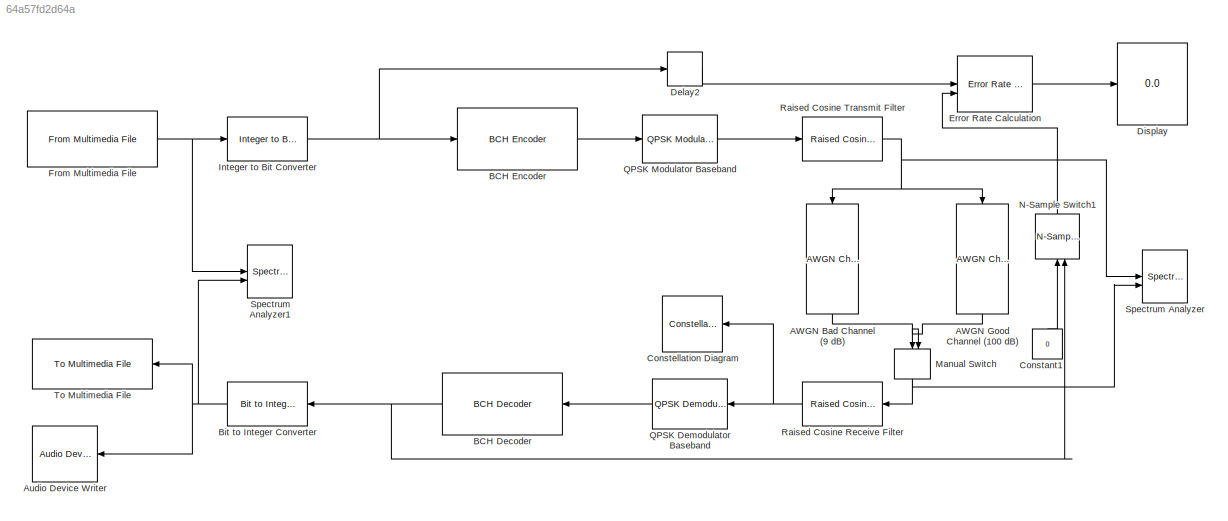
MODEL slx_64a57fd2d64a
KIND model
CONFIG AbsTol = auto
CONFIG EnableMultiTasking = off
CONFIG FixedStep = auto
CONFIG MaxStep = auto
CONFIG MinStep = auto
CONFIG RelTol = 1e-3
CONFIG SampleTimeConstraint = Unconstrained
CONFIG SolverName = VariableStepAuto
CONFIG StartTime = 0.0
CONFIG StopTime = 60
BLOCK [Reference] AWGN Bad Channel (9 dB)  REF=commchan3/AWGN
Channel
  NameLocation = left
  SourceBlock = commchan3/AWGN\nChannel
  SourceType = AWGN Channel
BLOCK [Reference] AWGN Good Channel (100 dB)  REF=commchan3/AWGN
Channel
  NameLocation = left
  SourceBlock = commchan3/AWGN\nChannel
  SourceType = AWGN Channel
BLOCK [Reference] Audio Device Writer  REF=dspsnks4/Audio Device
Writer
  LibrarySourceBlock = audiosinks/Audio Device\nWriter
  NameLocation = top
  SourceBlock = dspsnks4/Audio Device\nWriter
  SourceType = Audio Device Writer
BLOCK [Reference] BCH Decoder  REF=commblkcod2/BCH Decoder
  SourceBlock = commblkcod2/BCH Decoder
  SourceType = BCH Decoder
BLOCK [Reference] BCH Encoder  REF=commblkcod2/BCH Encoder
  SourceBlock = commblkcod2/BCH Encoder
  SourceType = BCH Encoder
BLOCK [Reference] Bit to Integer Converter  REF=simulink/Logic and Bit
Operations/Bit to Integer
Converter
  SourceBlock = simulink/Logic and Bit\nOperations/Bit to Integer\nConverter
  SourceType = Bit to Integer Converter
BLOCK [Constant] Constant1
  NameLocation = left
  OutDataTypeStr = uint8
  Value = 0
BLOCK [ConstellationDiagram] Constellation Diagram
  GraphicalSettings = {"GraphicalSettings":{"Style":{}}}
  ScopeFrameLocation = window
  Visible = on
  WasSavedAsWebScope = on
  WindowPosition = [220.000000,300.000000,600.000000,600.000000,]
BLOCK [Delay] Delay2
  InputPortMap = u0
BLOCK [Display] Display
  Decimation = 1
BLOCK [Reference] Error Rate Calculation  REF=commsink2/Error Rate
Calculation
  LibrarySourceBlock = commhdlsink/Error Rate\nCalculation
  SourceBlock = commsink2/Error Rate\nCalculation
  SourceType = Error Rate Calculation
BLOCK [Reference] From Multimedia File  REF=dspvision/From Multimedia File
  LibrarySourceBlock = audiosources/From Multimedia File
  SourceBlock = dspvision/From Multimedia File
  SourceType = From Multimedia File
BLOCK [Reference] Integer to Bit Converter  REF=simulink/Logic and Bit
Operations/Integer to Bit
Converter
  SourceBlock = simulink/Logic and Bit\nOperations/Integer to Bit\nConverter
  SourceType = Integer to Bit Converter
BLOCK [ManualSwitch] Manual Switch
  NameLocation = left
BLOCK [Reference] N-Sample Switch1  REF=dspswit3/N-Sample
Switch
  NameLocation = left
  SourceBlock = dspswit3/N-Sample\nSwitch
  SourceType = N-Sample Switch
BLOCK [Reference] QPSK Demodulator Baseband  REF=commdigbbndpm3/QPSK
Demodulator
Baseband
  LibrarySourceBlock = commhdldigbbndpm/QPSK\nDemodulator\nBaseband
  SourceBlock = commdigbbndpm3/QPSK\nDemodulator\nBaseband
  SourceType = QPSK Demodulator Baseband
BLOCK [Reference] QPSK Modulator Baseband  REF=commdigbbndpm3/QPSK
Modulator
Baseband
  LibrarySourceBlock = commhdldigbbndpm/QPSK\nModulator\nBaseband
  SourceBlock = commdigbbndpm3/QPSK\nModulator\nBaseband
  SourceType = QPSK Modulator Baseband
BLOCK [Reference] Raised Cosine Receive Filter  REF=commfilt2/Raised Cosine
Receive Filter
  LibrarySourceBlock = commhdlfilt/Raised Cosine\nReceive Filter
  SourceBlock = commfilt2/Raised Cosine\nReceive Filter
  SourceType = Raised Cosine Receive Filter
  UserDataPersistent = on
BLOCK [Reference] Raised Cosine Transmit Filter  REF=commfilt2/Raised Cosine
Transmit Filter
  LibrarySourceBlock = commhdlfilt/Raised Cosine\nTransmit Filter
  SourceBlock = commfilt2/Raised Cosine\nTransmit Filter
  SourceType = Raised Cosine Transmit Filter
  UserDataPersistent = on
BLOCK [SpectrumAnalyzer] Spectrum Analyzer
  DefaultConfigurationName = spbscopes.SpectrumAnalyzerBlockCfg
  FrequencyInputRBWFromPort = 0
  FrequencyInputRBWPort = 0
  FrequencySpan = Span and center frequency
  FrequencyVectorFromPort = 0
  FrequencyVectorPort = 0
  GraphicalSettings = {"GraphicalSettings":{"Style":{"BackgroundColor":[0.1568627450980392,0.1568627450980392,0.1568627450980392],"AxesColor":[0,0,0],"LabelsColor":[0.6862745098039216,0.6862745098039216,0.6862745098039216],"PreserveColors":false,"Visible":[true,true],"LineStyle":["-","-"],"LineColor":[[1,1,0.06666666666666667],[0.07450980392156863,0.6235294117647059,1]],"LineWidth":[1.5,1.5],"Marker":["none","none"],"F...<+879ch>
  IsFrequencyInputMode = 0
  NumInputPorts = 2
  ScopeFrameLocation = window
  ScopeSpecificationString = spbscopes.SpectrumAnalyzerBlockCfg('CurrentConfiguration', extmgr.ConfigurationSet(extmgr.Configuration('Core','General UI',true),extmgr.Configuration('Core','Source UI',true),extmgr.Configuration('Sources','WiredSimulink',true),extmgr.Configuration('Visuals','Spectrum',true,'AxesProperties',struct('Color',{[0 0 0],[0 0 0]},'XColor',{[0.686274509803922 0.686274509803922 0.686274509803922],[0.68627...<+1392ch>
  ShowLegend = on
  Span = 12000
  StartFrequency = -420000
  StopFrequency = 420000
  Visible = on
  WasSavedAsWebScope = on
  WindowPosition = [1.000000,49.000000,1664.000000,1039.000000,]
  YLimits = [-46.26455933,3.40486354]
BLOCK [SpectrumAnalyzer] Spectrum Analyzer1
  DefaultConfigurationName = spbscopes.SpectrumAnalyzerBlockCfg
  FrequencyInputRBWFromPort = 0
  FrequencyInputRBWPort = 0
  FrequencyVectorFromPort = 0
  FrequencyVectorPort = 0
  GraphicalSettings = {"GraphicalSettings":{"Style":{"BackgroundColor":[0.1568627450980392,0.1568627450980392,0.1568627450980392],"AxesColor":[0,0,0],"LabelsColor":[0.6862745098039216,0.6862745098039216,0.6862745098039216],"PreserveColors":false,"Visible":[true,true],"LineStyle":["-","-"],"LineColor":[[1,1,0.06666666666666667],[0.07450980392156863,0.6235294117647059,1]],"LineWidth":[1.5,1.5],"Marker":["none","none"],"F...<+880ch>
  IsFrequencyInputMode = 0
  NumInputPorts = 2
  ScopeFrameLocation = window
  ScopeSpecificationString = spbscopes.SpectrumAnalyzerBlockCfg('CurrentConfiguration', extmgr.ConfigurationSet(extmgr.Configuration('Core','General UI',true),extmgr.Configuration('Core','Source UI',true),extmgr.Configuration('Sources','WiredSimulink',true),extmgr.Configuration('Visuals','Spectrum',true,'AxesProperties',struct('Color',{[0 0 0],[0 0 0]},'XColor',{[0.686274509803922 0.686274509803922 0.686274509803922],[0.68627...<+1392ch>
  ShowLegend = on
  Span = 840000
  StartFrequency = -420000
  StopFrequency = 420000
  Visible = on
  WasSavedAsWebScope = on
  WindowPosition = [834.000000,50.000000,829.000000,1030.000000,]
  YLimits = [26.7993,88.4038]
BLOCK [Reference] To Multimedia File  REF=dspvision/To Multimedia File
  Commented = on
  LibrarySourceBlock = audiosinks/To Multimedia File
  SourceBlock = dspvision/To Multimedia File
  SourceType = To Multimedia File
LINE AWGN Bad Channel (9 dB):1 -> Manual Switch:1
LINE AWGN Good Channel (100 dB):1 -> Manual Switch:2
NET BCH Decoder:1 -> Bit to Integer Converter:1, N-Sample Switch1:2
LINE BCH Encoder:1 -> QPSK Modulator Baseband:1
NET Bit to Integer Converter:1 -> Audio Device Writer:1, Spectrum Analyzer1:2, To Multimedia File:1
LINE Constant1:1 -> N-Sample Switch1:1
LINE Delay2:1 -> Error Rate Calculation:1
LINE Error Rate Calculation:1 -> Display:1
NET From Multimedia File:1 -> Integer to Bit Converter:1, Spectrum Analyzer1:1
NET Integer to Bit Converter:1 -> BCH Encoder:1, Delay2:1
NET Manual Switch:1 -> Raised Cosine Receive Filter:1, Spectrum Analyzer:2
LINE N-Sample Switch1:1 -> Error Rate Calculation:2
LINE QPSK Demodulator Baseband:1 -> BCH Decoder:1
LINE QPSK Modulator Baseband:1 -> Raised Cosine Transmit Filter:1
NET Raised Cosine Receive Filter:1 -> Constellation Diagram:1, QPSK Demodulator Baseband:1
NET Raised Cosine Transmit Filter:1 -> AWGN Bad Channel (9 dB):1, AWGN Good Channel (100 dB):1, Spectrum Analyzer:1
note: NET lines group one-source signal fan-out (src -> all destinations, sorted); 1:1 wires keep LINE
